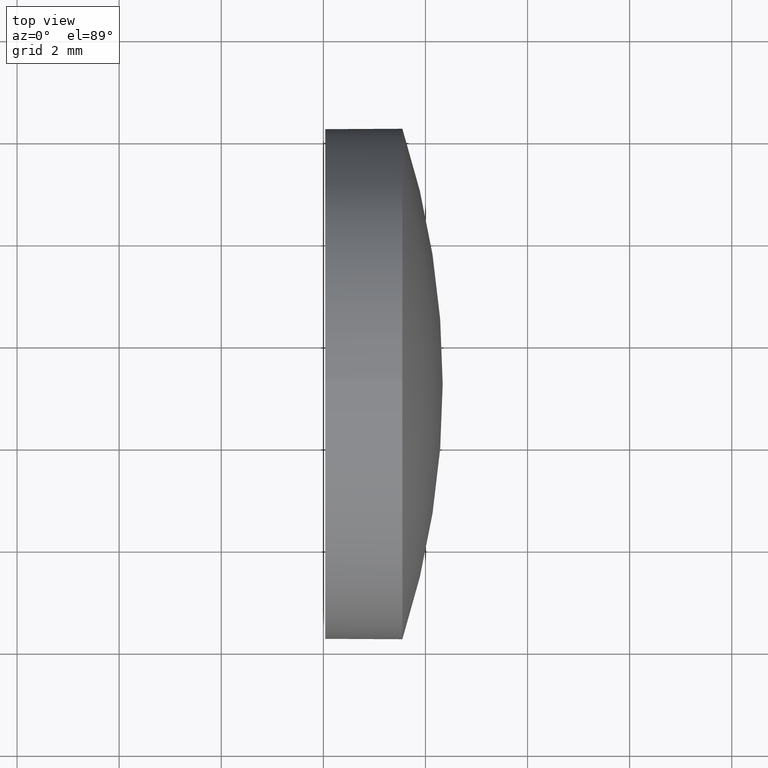
[diagram: clean part render]
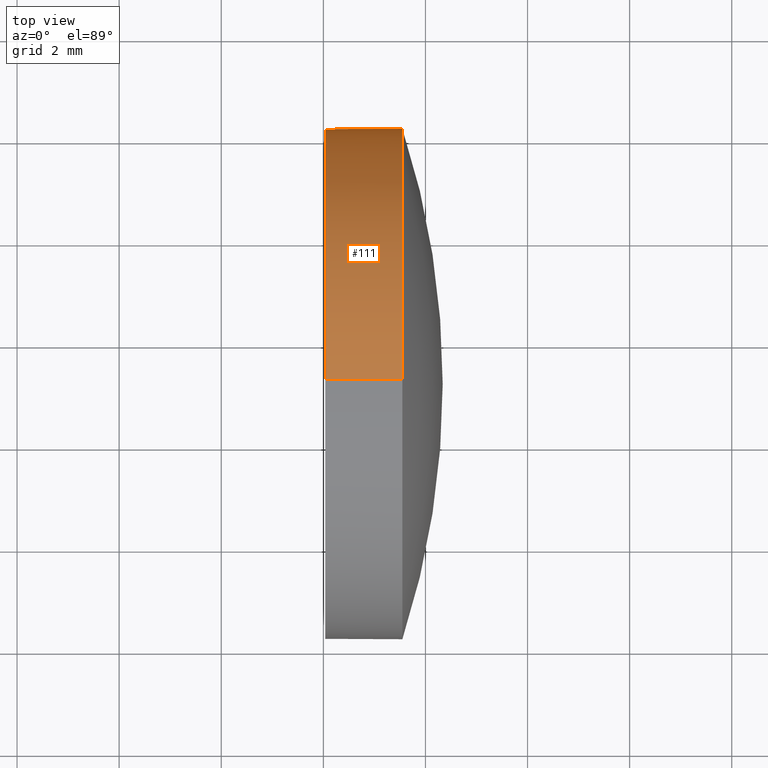
[diagram: same view with one face highlighted and labeled with its STEP entity id]
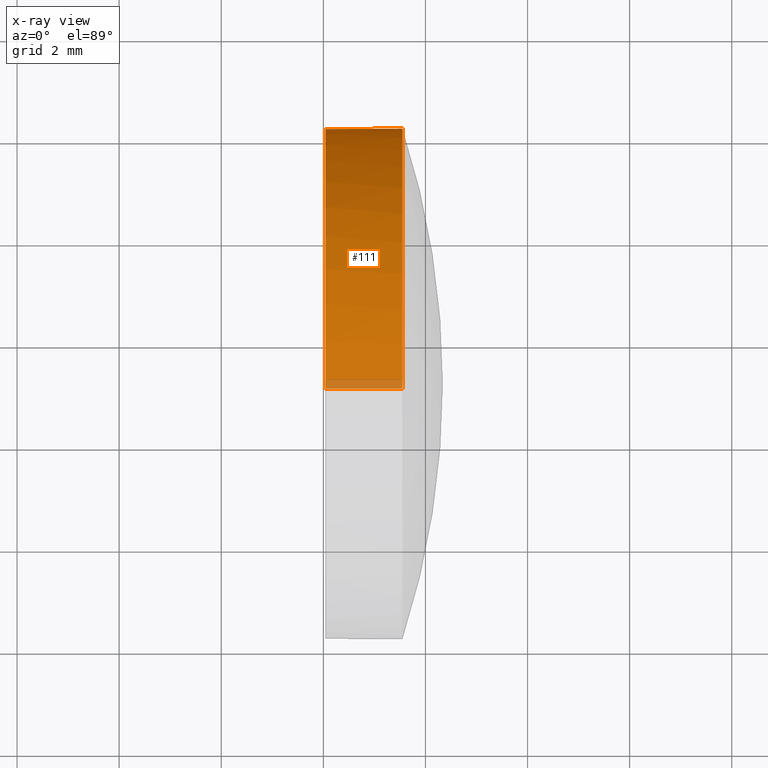
[diagram: x-ray of the same camera — body ghosted, the highlighted face saturated]
A machine part, top view. The second image highlights one B-rep face of the part: STEP entity #111.
The next image is the same camera in x-ray: the body ghosted, the highlighted face saturated — about 3% of this face is hidden behind the body in this view.
In plain terms, the highlighted cylindrical surface (partial cylindrical patch) has radius 5 mm, axis along (-1, -0, -0).
Its self-contained STEP definition (entity closure, byte-faithful):
#1 = AXIS2_PLACEMENT_3D ( 'NONE', #127, #180, #59 ) ;
#2 = LINE ( 'NONE', #169, #105 ) ;
#6 = VERTEX_POINT ( 'NONE', #43 ) ;
#14 = ORIENTED_EDGE ( 'NONE', *, *, #145, .F. ) ;
#15 = FACE_OUTER_BOUND ( 'NONE', #71, .T. ) ;
#19 = CARTESIAN_POINT ( 'NONE',  ( 672.0380780452615000, 143.2040928477547100, 0.0000000000000000000 ) ) ;
#24 = ORIENTED_EDGE ( 'NONE', *, *, #54, .F. ) ;
#29 = CARTESIAN_POINT ( 'NONE',  ( 672.0380780452615000, 143.2040928477547100, -5.000000000000004400 ) ) ;
#31 = CARTESIAN_POINT ( 'NONE',  ( 673.5480780452614900, 143.2040928477547100, 5.000000000000004400 ) ) ;
#41 = CYLINDRICAL_SURFACE ( 'NONE', #176, 5.000000000000004400 ) ;
#42 = CARTESIAN_POINT ( 'NONE',  ( 673.5480780452614900, 148.2040928477546500, 0.0000000000000000000 ) ) ;
#43 = CARTESIAN_POINT ( 'NONE',  ( 673.5480780452614900, 143.2040928477547100, -5.000000000000004400 ) ) ;
#46 = DIRECTION ( 'NONE',  ( 0.0000000000000000000, 0.0000000000000000000, 1.000000000000000000 ) ) ;
#54 = EDGE_CURVE ( 'NONE', #168, #184, #2, .T. ) ;
#59 = DIRECTION ( 'NONE',  ( 0.0000000000000000000, 0.0000000000000000000, 1.000000000000000000 ) ) ;
#60 = CARTESIAN_POINT ( 'NONE',  ( 671.2404057911960500, 143.2040928477547100, -5.000000000000004400 ) ) ;
#62 = CIRCLE ( 'NONE', #158, 5.000000000000004400 ) ;
#71 = EDGE_LOOP ( 'NONE', ( #159, #161, #14, #24, #99 ) ) ;
#79 = LINE ( 'NONE', #60, #107 ) ;
#83 = DIRECTION ( 'NONE',  ( 0.0000000000000000000, 0.0000000000000000000, 1.000000000000000000 ) ) ;
#84 = EDGE_CURVE ( 'NONE', #168, #86, #122, .T. ) ;
#86 = VERTEX_POINT ( 'NONE', #42 ) ;
#88 = DIRECTION ( 'NONE',  ( -1.000000000000000000, -0.0000000000000000000, -0.0000000000000000000 ) ) ;
#91 = CIRCLE ( 'NONE', #131, 5.000000000000004400 ) ;
#93 = EDGE_CURVE ( 'NONE', #6, #117, #79, .T. ) ;
#98 = EDGE_CURVE ( 'NONE', #86, #6, #91, .T. ) ;
#99 = ORIENTED_EDGE ( 'NONE', *, *, #84, .T. ) ;
#101 = CARTESIAN_POINT ( 'NONE',  ( 673.5480780452614900, 143.2040928477547100, 0.0000000000000000000 ) ) ;
#102 = CARTESIAN_POINT ( 'NONE',  ( 671.2404057911960500, 143.2040928477547100, 0.0000000000000000000 ) ) ;
#105 = VECTOR ( 'NONE', #118, 1000.000000000000000 ) ;
#107 = VECTOR ( 'NONE', #121, 1000.000000000000000 ) ;
#111 = ADVANCED_FACE ( 'NONE', ( #15 ), #41, .T. ) ;
#117 = VERTEX_POINT ( 'NONE', #29 ) ;
#118 = DIRECTION ( 'NONE',  ( -1.000000000000000000, -0.0000000000000000000, -0.0000000000000000000 ) ) ;
#120 = CARTESIAN_POINT ( 'NONE',  ( 672.0380780452615000, 143.2040928477547100, 5.000000000000004400 ) ) ;
#121 = DIRECTION ( 'NONE',  ( -1.000000000000000000, -0.0000000000000000000, -0.0000000000000000000 ) ) ;
#122 = CIRCLE ( 'NONE', #1, 5.000000000000004400 ) ;
#127 = CARTESIAN_POINT ( 'NONE',  ( 673.5480780452614900, 143.2040928477547100, 0.0000000000000000000 ) ) ;
#129 = DIRECTION ( 'NONE',  ( -1.000000000000000000, -0.0000000000000000000, -0.0000000000000000000 ) ) ;
#131 = AXIS2_PLACEMENT_3D ( 'NONE', #101, #149, #170 ) ;
#145 = EDGE_CURVE ( 'NONE', #184, #117, #62, .T. ) ;
#149 = DIRECTION ( 'NONE',  ( -1.000000000000000000, -0.0000000000000000000, -0.0000000000000000000 ) ) ;
#158 = AXIS2_PLACEMENT_3D ( 'NONE', #19, #88, #46 ) ;
#159 = ORIENTED_EDGE ( 'NONE', *, *, #98, .T. ) ;
#161 = ORIENTED_EDGE ( 'NONE', *, *, #93, .T. ) ;
#168 = VERTEX_POINT ( 'NONE', #31 ) ;
#169 = CARTESIAN_POINT ( 'NONE',  ( 671.2404057911960500, 143.2040928477547100, 5.000000000000004400 ) ) ;
#170 = DIRECTION ( 'NONE',  ( 0.0000000000000000000, 0.0000000000000000000, 1.000000000000000000 ) ) ;
#176 = AXIS2_PLACEMENT_3D ( 'NONE', #102, #129, #83 ) ;
#180 = DIRECTION ( 'NONE',  ( -1.000000000000000000, -0.0000000000000000000, -0.0000000000000000000 ) ) ;
#184 = VERTEX_POINT ( 'NONE', #120 ) ;